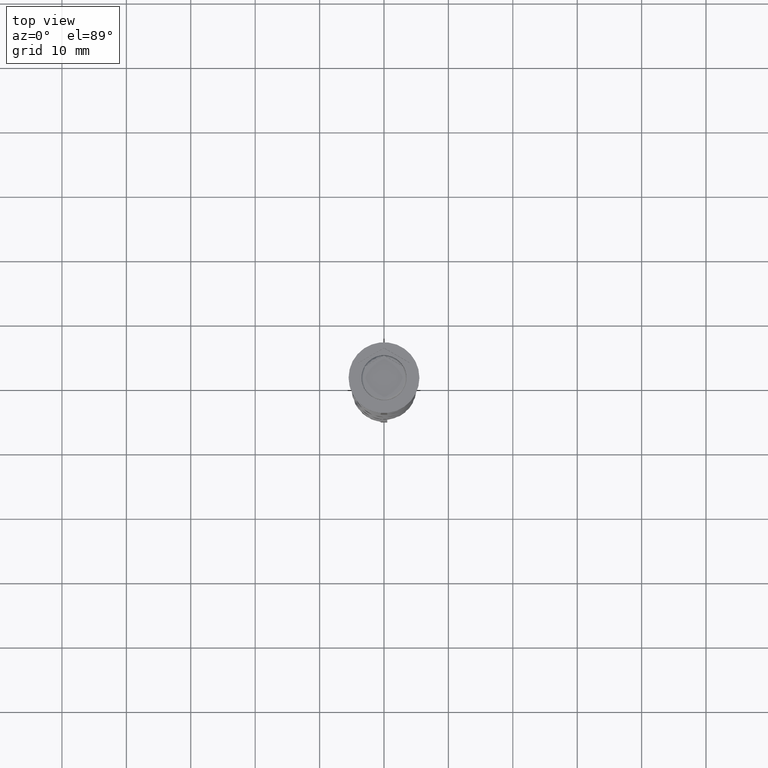
[diagram: clean part render]
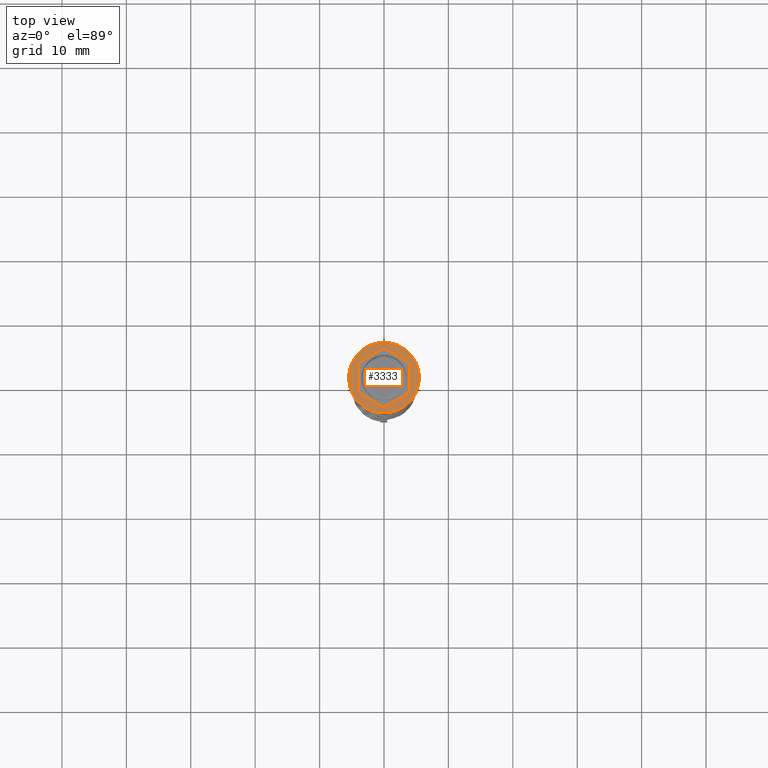
[diagram: same view with one face highlighted and labeled with its STEP entity id]
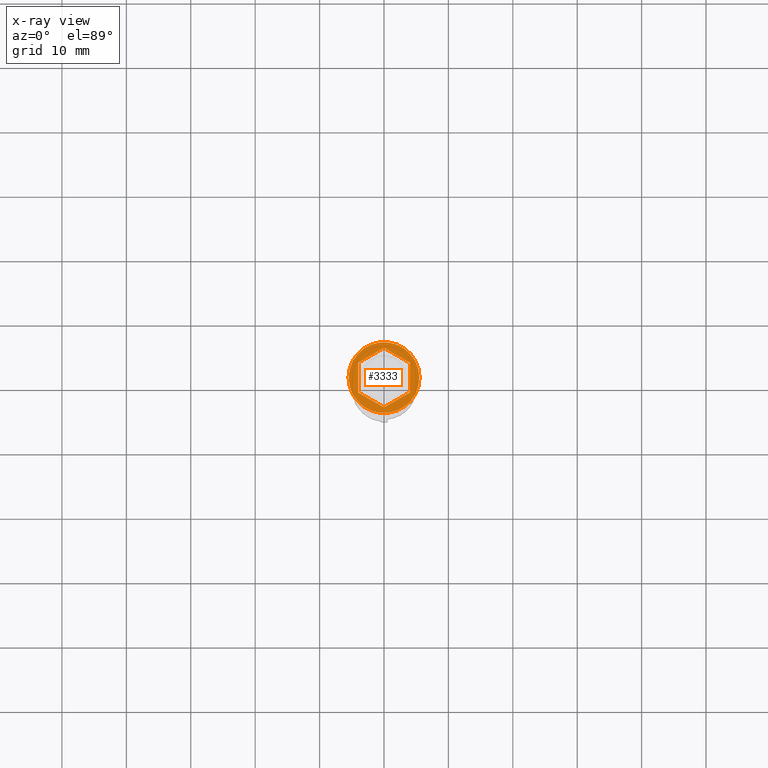
[diagram: x-ray of the same camera — body ghosted, the highlighted face saturated]
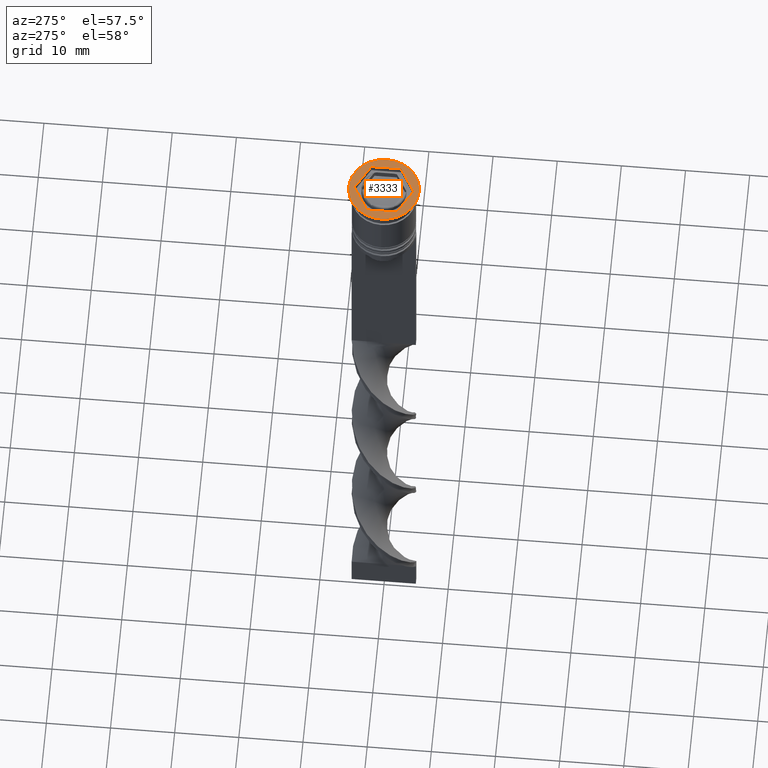
[diagram: same view with one face highlighted and labeled with its STEP entity id]
A machine part, top view. The second image highlights one B-rep face of the part: STEP entity #3333.
The next image is the same camera in x-ray: the body ghosted, the highlighted face saturated — about 0% of this face is hidden behind the body in this view.
A second angle (auxiliary view) of the same face is appended — the face is thin or edge-on in the first view.
In plain terms, the highlighted planar face has unit normal (0, -0, 1).
Its self-contained STEP definition (entity closure, byte-faithful):
#46 = CARTESIAN_POINT ( 'NONE',  ( 4.000000000000000000, -2.309401076758503368, 0.000000000000000000 ) ) ;
#65 = DIRECTION ( 'NONE',  ( -0.8660254037844387076, 0.4999999999999998890, 0.000000000000000000 ) ) ;
#83 = EDGE_CURVE ( 'NONE', #1827, #2522, #777, .T. ) ;
#103 = VERTEX_POINT ( 'NONE', #3339 ) ;
#112 = CIRCLE ( 'NONE', #2667, 5.500000000000000000 ) ;
#138 = VECTOR ( 'NONE', #65, 1000.000000000000000 ) ;
#159 = CARTESIAN_POINT ( 'NONE',  ( 0.000000000000000000, 0.000000000000000000, 0.000000000000000000 ) ) ;
#319 = VERTEX_POINT ( 'NONE', #2871 ) ;
#356 = CARTESIAN_POINT ( 'NONE',  ( 4.000000000000000000, 2.309401076758503368, 0.000000000000000000 ) ) ;
#463 = DIRECTION ( 'NONE',  ( -0.000000000000000000, -0.000000000000000000, 1.000000000000000000 ) ) ;
#481 = ORIENTED_EDGE ( 'NONE', *, *, #1849, .F. ) ;
#596 = DIRECTION ( 'NONE',  ( 0.000000000000000000, 1.000000000000000000, 0.000000000000000000 ) ) ;
#646 = LINE ( 'NONE', #1476, #1852 ) ;
#706 = VECTOR ( 'NONE', #596, 1000.000000000000000 ) ;
#740 = VECTOR ( 'NONE', #2882, 1000.000000000000000 ) ;
#754 = DIRECTION ( 'NONE',  ( 1.000000000000000000, 0.000000000000000000, 0.000000000000000000 ) ) ;
#777 = LINE ( 'NONE', #3352, #2640 ) ;
#797 = CIRCLE ( 'NONE', #2249, 5.500000000000000000 ) ;
#835 = EDGE_CURVE ( 'NONE', #103, #2790, #2643, .T. ) ;
#906 = EDGE_CURVE ( 'NONE', #1584, #1827, #646, .T. ) ;
#912 = EDGE_CURVE ( 'NONE', #2522, #103, #3425, .T. ) ;
#915 = CARTESIAN_POINT ( 'NONE',  ( -4.000000000000000000, 2.309401076758502480, 0.000000000000000000 ) ) ;
#984 = FACE_BOUND ( 'NONE', #3361, .T. ) ;
#1274 = DIRECTION ( 'NONE',  ( -0.8660254037844385966, -0.5000000000000000000, 0.000000000000000000 ) ) ;
#1296 = VERTEX_POINT ( 'NONE', #2812 ) ;
#1335 = DIRECTION ( 'NONE',  ( 1.000000000000000000, 0.000000000000000000, 0.000000000000000000 ) ) ;
#1356 = DIRECTION ( 'NONE',  ( -0.000000000000000000, -0.000000000000000000, 1.000000000000000000 ) ) ;
#1412 = VERTEX_POINT ( 'NONE', #2234 ) ;
#1476 = CARTESIAN_POINT ( 'NONE',  ( -4.000000000000000000, -2.309401076758503368, 0.000000000000000000 ) ) ;
#1546 = ORIENTED_EDGE ( 'NONE', *, *, #3387, .T. ) ;
#1570 = FACE_OUTER_BOUND ( 'NONE', #2045, .T. ) ;
#1584 = VERTEX_POINT ( 'NONE', #2353 ) ;
#1642 = DIRECTION ( 'NONE',  ( 1.000000000000000000, 0.000000000000000000, 0.000000000000000000 ) ) ;
#1735 = DIRECTION ( 'NONE',  ( 0.8660254037844387076, -0.4999999999999999445, 0.000000000000000000 ) ) ;
#1827 = VERTEX_POINT ( 'NONE', #3546 ) ;
#1849 = EDGE_CURVE ( 'NONE', #1412, #1584, #2897, .T. ) ;
#1852 = VECTOR ( 'NONE', #1735, 1000.000000000000000 ) ;
#1855 = LINE ( 'NONE', #1870, #1944 ) ;
#1857 = ORIENTED_EDGE ( 'NONE', *, *, #906, .F. ) ;
#1870 = CARTESIAN_POINT ( 'NONE',  ( 0.000000000000000000, 4.618802153517005848, 0.000000000000000000 ) ) ;
#1876 = CARTESIAN_POINT ( 'NONE',  ( 0.000000000000000000, 0.000000000000000000, 0.000000000000000000 ) ) ;
#1925 = DIRECTION ( 'NONE',  ( 0.8660254037844384856, 0.5000000000000001110, 0.000000000000000000 ) ) ;
#1944 = VECTOR ( 'NONE', #1274, 1000.000000000000227 ) ;
#2045 = EDGE_LOOP ( 'NONE', ( #2673, #1546 ) ) ;
#2085 = ORIENTED_EDGE ( 'NONE', *, *, #912, .F. ) ;
#2234 = CARTESIAN_POINT ( 'NONE',  ( -4.000000000000000000, 2.309401076758502480, 0.000000000000000000 ) ) ;
#2249 = AXIS2_PLACEMENT_3D ( 'NONE', #1876, #1356, #1335 ) ;
#2353 = CARTESIAN_POINT ( 'NONE',  ( -4.000000000000000000, -2.309401076758503368, 0.000000000000000000 ) ) ;
#2427 = AXIS2_PLACEMENT_3D ( 'NONE', #159, #3615, #754 ) ;
#2522 = VERTEX_POINT ( 'NONE', #2736 ) ;
#2640 = VECTOR ( 'NONE', #1925, 1000.000000000000227 ) ;
#2643 = LINE ( 'NONE', #356, #138 ) ;
#2667 = AXIS2_PLACEMENT_3D ( 'NONE', #3091, #463, #1642 ) ;
#2673 = ORIENTED_EDGE ( 'NONE', *, *, #2970, .T. ) ;
#2714 = PLANE ( 'NONE',  #2427 ) ;
#2736 = CARTESIAN_POINT ( 'NONE',  ( 4.000000000000000000, -2.309401076758503368, 0.000000000000000000 ) ) ;
#2790 = VERTEX_POINT ( 'NONE', #3405 ) ;
#2812 = CARTESIAN_POINT ( 'NONE',  ( -5.500000000000000000, 6.735557395310442023E-16, 0.000000000000000000 ) ) ;
#2871 = CARTESIAN_POINT ( 'NONE',  ( 5.500000000000000000, 0.000000000000000000, 0.000000000000000000 ) ) ;
#2882 = DIRECTION ( 'NONE',  ( 0.000000000000000000, -1.000000000000000000, 0.000000000000000000 ) ) ;
#2897 = LINE ( 'NONE', #915, #740 ) ;
#2948 = ORIENTED_EDGE ( 'NONE', *, *, #835, .F. ) ;
#2970 = EDGE_CURVE ( 'NONE', #319, #1296, #797, .T. ) ;
#2974 = ORIENTED_EDGE ( 'NONE', *, *, #83, .F. ) ;
#3091 = CARTESIAN_POINT ( 'NONE',  ( 0.000000000000000000, 0.000000000000000000, 0.000000000000000000 ) ) ;
#3109 = EDGE_CURVE ( 'NONE', #2790, #1412, #1855, .T. ) ;
#3282 = ORIENTED_EDGE ( 'NONE', *, *, #3109, .F. ) ;
#3333 = ADVANCED_FACE ( 'NONE', ( #984, #1570 ), #2714, .T. ) ;
#3339 = CARTESIAN_POINT ( 'NONE',  ( 4.000000000000000000, 2.309401076758503368, 0.000000000000000000 ) ) ;
#3352 = CARTESIAN_POINT ( 'NONE',  ( 8.729740977282959667E-16, -4.618802153517006737, 0.000000000000000000 ) ) ;
#3361 = EDGE_LOOP ( 'NONE', ( #2948, #2085, #2974, #1857, #481, #3282 ) ) ;
#3387 = EDGE_CURVE ( 'NONE', #1296, #319, #112, .T. ) ;
#3405 = CARTESIAN_POINT ( 'NONE',  ( 0.000000000000000000, 4.618802153517005848, 0.000000000000000000 ) ) ;
#3425 = LINE ( 'NONE', #46, #706 ) ;
#3546 = CARTESIAN_POINT ( 'NONE',  ( 8.729740977282959667E-16, -4.618802153517006737, 0.000000000000000000 ) ) ;
#3615 = DIRECTION ( 'NONE',  ( 0.000000000000000000, -0.000000000000000000, 1.000000000000000000 ) ) ;